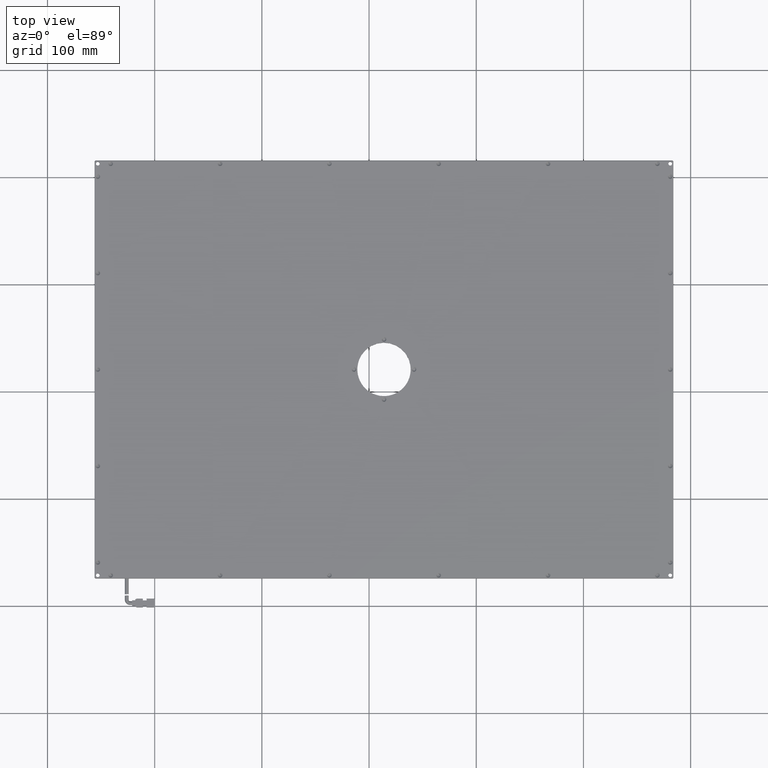
[diagram: clean part render]
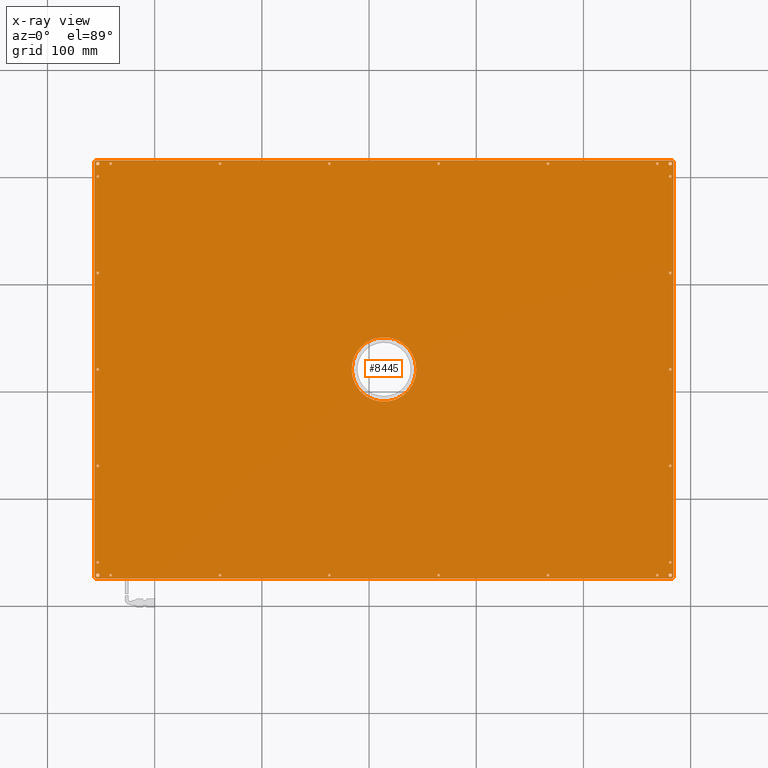
[diagram: x-ray — body ghosted, one internal face saturated and labeled with its STEP entity id]
A machine part, top view, then the same camera in x-ray: the body is ghosted and one INTERNAL B-rep face — a face not visible from any outside direction — is saturated and labeled: STEP entity #8445.
In plain terms, the highlighted planar face has unit normal (0, 0, -1).
Its self-contained STEP definition (entity closure, byte-faithful):
#55 = DIRECTION ( 'NONE',  ( -0.0000000000000000000, -0.0000000000000000000, 1.000000000000000000 ) ) ;
#72 = AXIS2_PLACEMENT_3D ( 'NONE', #33589, #7498, #23959 ) ;
#150 = LINE ( 'NONE', #10394, #11915 ) ;
#157 = CIRCLE ( 'NONE', #1136, 1.199999999999978900 ) ;
#177 = DIRECTION ( 'NONE',  ( 1.000000000000000000, 0.0000000000000000000, 0.0000000000000000000 ) ) ;
#397 = CARTESIAN_POINT ( 'NONE',  ( -253.0590440487347900, 110.7122774133084700, 10.00000000001909900 ) ) ;
#404 = CARTESIAN_POINT ( 'NONE',  ( 282.9409559512652100, 215.7122774133083900, 10.00000000001909800 ) ) ;
#492 = EDGE_CURVE ( 'NONE', #15479, #27927, #1912, .T. ) ;
#497 = CARTESIAN_POINT ( 'NONE',  ( 268.9409559512652100, 212.7122774133083900, 10.00000000001909900 ) ) ;
#609 = FACE_BOUND ( 'NONE', #9022, .T. ) ;
#699 = CARTESIAN_POINT ( 'NONE',  ( -256.0590440487347900, -173.2877225866916100, 10.00000000001909800 ) ) ;
#830 = CARTESIAN_POINT ( 'NONE',  ( -254.2590440487347800, -69.28772258669162900, 10.00000000001909900 ) ) ;
#967 = AXIS2_PLACEMENT_3D ( 'NONE', #32111, #42356, #15933 ) ;
#1136 = AXIS2_PLACEMENT_3D ( 'NONE', #34912, #25718, #2398 ) ;
#1145 = EDGE_LOOP ( 'NONE', ( #38197, #10732 ) ) ;
#1149 = CARTESIAN_POINT ( 'NONE',  ( 64.94095595126519500, -171.2877225866916100, 10.00000000001909900 ) ) ;
#1174 = CIRCLE ( 'NONE', #2687, 1.199999999999978900 ) ;
#1260 = EDGE_LOOP ( 'NONE', ( #14462, #20805 ) ) ;
#1285 = DIRECTION ( 'NONE',  ( -0.0000000000000000000, -0.0000000000000000000, 1.000000000000000000 ) ) ;
#1388 = VERTEX_POINT ( 'NONE', #5441 ) ;
#1472 = CARTESIAN_POINT ( 'NONE',  ( -251.8590440487348300, -69.28772258669162900, 10.00000000001909900 ) ) ;
#1520 = AXIS2_PLACEMENT_3D ( 'NONE', #31220, #24192, #31075 ) ;
#1599 = VECTOR ( 'NONE', #20843, 1000.000000000000100 ) ;
#1648 = AXIS2_PLACEMENT_3D ( 'NONE', #23380, #32993, #29556 ) ;
#1762 = VERTEX_POINT ( 'NONE', #37903 ) ;
#1781 = EDGE_CURVE ( 'NONE', #3684, #8140, #12857, .T. ) ;
#1912 = CIRCLE ( 'NONE', #26301, 1.199999999999978900 ) ;
#2056 = CARTESIAN_POINT ( 'NONE',  ( 63.74095595126522100, -171.2877225866916100, 10.00000000001909900 ) ) ;
#2079 = CARTESIAN_POINT ( 'NONE',  ( 280.9409559512652100, 20.71227741330838900, 10.00000000001909900 ) ) ;
#2160 = EDGE_CURVE ( 'NONE', #15859, #37869, #20997, .T. ) ;
#2197 = VECTOR ( 'NONE', #8197, 1000.000000000000100 ) ;
#2398 = DIRECTION ( 'NONE',  ( 1.000000000000000000, 0.0000000000000000000, 0.0000000000000000000 ) ) ;
#2496 = AXIS2_PLACEMENT_3D ( 'NONE', #25147, #41150, #34638 ) ;
#2497 = CARTESIAN_POINT ( 'NONE',  ( 280.9409559512652100, 212.7122774133083900, 10.00000000001909900 ) ) ;
#2506 = CIRCLE ( 'NONE', #32125, 1.749999999999973800 ) ;
#2565 = DIRECTION ( 'NONE',  ( -1.000000000000000000, 0.0000000000000000000, 0.0000000000000000000 ) ) ;
#2643 = FACE_BOUND ( 'NONE', #7225, .T. ) ;
#2652 = CARTESIAN_POINT ( 'NONE',  ( -37.05904404873480500, 212.7122774133083900, 10.00000000001909900 ) ) ;
#2687 = AXIS2_PLACEMENT_3D ( 'NONE', #37233, #17630, #40604 ) ;
#2748 = CARTESIAN_POINT ( 'NONE',  ( -251.3090440487348200, 212.7122774133083900, 10.00000000001909900 ) ) ;
#2819 = CARTESIAN_POINT ( 'NONE',  ( 283.9409559512652100, -173.2877225866915600, 10.00000000001909800 ) ) ;
#3011 = EDGE_CURVE ( 'NONE', #26882, #27317, #26645, .T. ) ;
#3054 = CARTESIAN_POINT ( 'NONE',  ( 267.7409559512652200, -171.2877225866916100, 10.00000000001909900 ) ) ;
#3089 = DIRECTION ( 'NONE',  ( -0.0000000000000000000, -0.0000000000000000000, 1.000000000000000000 ) ) ;
#3133 = FACE_BOUND ( 'NONE', #28036, .T. ) ;
#3143 = EDGE_LOOP ( 'NONE', ( #26117, #18301 ) ) ;
#3191 = CIRCLE ( 'NONE', #19431, 1.199999999999978900 ) ;
#3226 = CIRCLE ( 'NONE', #12267, 1.199999999999978900 ) ;
#3313 = DIRECTION ( 'NONE',  ( 1.000000000000000000, 0.0000000000000000000, 0.0000000000000000000 ) ) ;
#3398 = CIRCLE ( 'NONE', #28945, 1.199999999999978900 ) ;
#3410 = CARTESIAN_POINT ( 'NONE',  ( 279.7409559512652200, -69.28772258669162900, 10.00000000001909900 ) ) ;
#3479 = VERTEX_POINT ( 'NONE', #11644 ) ;
#3499 = EDGE_LOOP ( 'NONE', ( #38832, #10981 ) ) ;
#3520 = DIRECTION ( 'NONE',  ( -0.0000000000000000000, -0.0000000000000000000, 1.000000000000000000 ) ) ;
#3545 = EDGE_CURVE ( 'NONE', #26257, #21757, #15845, .T. ) ;
#3561 = DIRECTION ( 'NONE',  ( 1.000000000000000000, 0.0000000000000000000, 0.0000000000000000000 ) ) ;
#3619 = CARTESIAN_POINT ( 'NONE',  ( -139.0590440487348200, -171.2877225866916100, 10.00000000001909900 ) ) ;
#3649 = VERTEX_POINT ( 'NONE', #19655 ) ;
#3665 = DIRECTION ( 'NONE',  ( 1.000000000000000000, -0.0000000000000000000, 0.0000000000000000000 ) ) ;
#3666 = DIRECTION ( 'NONE',  ( 1.000000000000000000, 0.0000000000000000000, 0.0000000000000000000 ) ) ;
#3684 = VERTEX_POINT ( 'NONE', #9931 ) ;
#3762 = DIRECTION ( 'NONE',  ( -0.0000000000000000000, -0.0000000000000000000, 1.000000000000000000 ) ) ;
#3781 = EDGE_LOOP ( 'NONE', ( #16815, #6312 ) ) ;
#3864 = CIRCLE ( 'NONE', #13344, 1.199999999999978900 ) ;
#3976 = EDGE_CURVE ( 'NONE', #14496, #35120, #35753, .T. ) ;
#4067 = EDGE_CURVE ( 'NONE', #24275, #20075, #28038, .T. ) ;
#4163 = FACE_BOUND ( 'NONE', #25843, .T. ) ;
#4287 = DIRECTION ( 'NONE',  ( -0.0000000000000000000, -0.0000000000000000000, 1.000000000000000000 ) ) ;
#4294 = CARTESIAN_POINT ( 'NONE',  ( 282.9409559512652100, 215.7122774133083900, 10.00000000001909800 ) ) ;
#4538 = EDGE_CURVE ( 'NONE', #3479, #36343, #3864, .T. ) ;
#4687 = FACE_BOUND ( 'NONE', #3143, .T. ) ;
#4795 = DIRECTION ( 'NONE',  ( -0.0000000000000000000, -0.0000000000000000000, 1.000000000000000000 ) ) ;
#4799 = ORIENTED_EDGE ( 'NONE', *, *, #4067, .T. ) ;
#4825 = LINE ( 'NONE', #35461, #11006 ) ;
#5121 = CIRCLE ( 'NONE', #9244, 1.200000000000006600 ) ;
#5132 = EDGE_LOOP ( 'NONE', ( #24035, #14879, #36401, #31326, #30204, #24041, #5551, #27769 ) ) ;
#5196 = FACE_BOUND ( 'NONE', #25436, .T. ) ;
#5214 = CIRCLE ( 'NONE', #7220, 1.199999999999978900 ) ;
#5378 = EDGE_CURVE ( 'NONE', #35408, #12247, #1174, .T. ) ;
#5441 = CARTESIAN_POINT ( 'NONE',  ( 279.1909559512652100, 212.7122774133083900, 10.00000000001909900 ) ) ;
#5501 = VERTEX_POINT ( 'NONE', #8449 ) ;
#5551 = ORIENTED_EDGE ( 'NONE', *, *, #20972, .T. ) ;
#5579 = CIRCLE ( 'NONE', #39320, 30.10000000000001600 ) ;
#5816 = CARTESIAN_POINT ( 'NONE',  ( 63.74095595126522100, 212.7122774133083900, 10.00000000001909900 ) ) ;
#5824 = EDGE_CURVE ( 'NONE', #8993, #34668, #7198, .T. ) ;
#5909 = VERTEX_POINT ( 'NONE', #14221 ) ;
#5973 = DIRECTION ( 'NONE',  ( 1.000000000000000000, 0.0000000000000000000, 0.0000000000000000000 ) ) ;
#6004 = CARTESIAN_POINT ( 'NONE',  ( -254.2590440487347800, 20.71227741330838900, 10.00000000001909900 ) ) ;
#6066 = DIRECTION ( 'NONE',  ( 1.000000000000000000, 0.0000000000000000000, 0.0000000000000000000 ) ) ;
#6089 = CIRCLE ( 'NONE', #17266, 1.199999999999978900 ) ;
#6214 = CARTESIAN_POINT ( 'NONE',  ( -256.0590440487347900, 214.7122774133084400, 10.00000000001909800 ) ) ;
#6312 = ORIENTED_EDGE ( 'NONE', *, *, #5378, .T. ) ;
#6459 = CARTESIAN_POINT ( 'NONE',  ( -253.0590440487347900, 212.7122774133083900, 10.00000000001909900 ) ) ;
#6464 = CARTESIAN_POINT ( 'NONE',  ( -256.0590440487347900, -174.2877225866916100, 10.00000000001909900 ) ) ;
#6467 = PLANE ( 'NONE',  #19321 ) ;
#6518 = AXIS2_PLACEMENT_3D ( 'NONE', #2497, #15421, #18963 ) ;
#6714 = EDGE_CURVE ( 'NONE', #1762, #40919, #5579, .T. ) ;
#6824 = CARTESIAN_POINT ( 'NONE',  ( 270.1409559512652000, 212.7122774133083900, 10.00000000001909900 ) ) ;
#6864 = DIRECTION ( 'NONE',  ( -0.0000000000000000000, -0.0000000000000000000, 1.000000000000000000 ) ) ;
#6881 = CARTESIAN_POINT ( 'NONE',  ( 279.7409559512652200, 110.7122774133084700, 10.00000000001909900 ) ) ;
#7198 = LINE ( 'NONE', #7785, #1599 ) ;
#7220 = AXIS2_PLACEMENT_3D ( 'NONE', #11806, #37884, #11657 ) ;
#7225 = EDGE_LOOP ( 'NONE', ( #4799, #38680 ) ) ;
#7237 = EDGE_CURVE ( 'NONE', #40462, #27413, #7983, .T. ) ;
#7241 = FACE_BOUND ( 'NONE', #3781, .T. ) ;
#7294 = CARTESIAN_POINT ( 'NONE',  ( -255.0590440487349000, 215.7122774133083900, 10.00000000001909800 ) ) ;
#7364 = ORIENTED_EDGE ( 'NONE', *, *, #20919, .T. ) ;
#7415 = DIRECTION ( 'NONE',  ( 1.000000000000000000, 0.0000000000000000000, 0.0000000000000000000 ) ) ;
#7498 = DIRECTION ( 'NONE',  ( -0.0000000000000000000, -0.0000000000000000000, 1.000000000000000000 ) ) ;
#7542 = DIRECTION ( 'NONE',  ( 1.000000000000000000, 0.0000000000000000000, 0.0000000000000000000 ) ) ;
#7625 = AXIS2_PLACEMENT_3D ( 'NONE', #13604, #20210, #3313 ) ;
#7785 = CARTESIAN_POINT ( 'NONE',  ( -255.0590440487348200, -174.2877225866916100, 10.00000000001909800 ) ) ;
#7804 = DIRECTION ( 'NONE',  ( -0.0000000000000000000, -0.0000000000000000000, 1.000000000000000000 ) ) ;
#7820 = VERTEX_POINT ( 'NONE', #38159 ) ;
#7874 = CARTESIAN_POINT ( 'NONE',  ( -242.2590440487347800, 212.7122774133083900, 10.00000000001909900 ) ) ;
#7920 = VERTEX_POINT ( 'NONE', #6214 ) ;
#7983 = CIRCLE ( 'NONE', #2496, 1.199999999999978900 ) ;
#8059 = CIRCLE ( 'NONE', #40568, 1.199999999999978900 ) ;
#8061 = DIRECTION ( 'NONE',  ( -0.0000000000000000000, -0.0000000000000000000, 1.000000000000000000 ) ) ;
#8140 = VERTEX_POINT ( 'NONE', #41792 ) ;
#8197 = DIRECTION ( 'NONE',  ( 0.7071067811865474600, 0.7071067811865474600, 0.0000000000000000000 ) ) ;
#8272 = CARTESIAN_POINT ( 'NONE',  ( -256.0590440487347900, 215.7122774133083900, 10.00000000001909900 ) ) ;
#8445 = ADVANCED_FACE ( 'NONE', ( #18530, #9321, #19050, #21595, #10339, #609, #2643, #28787, #18029, #20571, #21093, #35954, #7241, #42195, #3133, #14955, #34434, #13396, #25690, #4687, #39070, #33389, #22615, #5196, #4163, #9817, #32363, #16992 ), #6467, .T. ) ;
#8449 = CARTESIAN_POINT ( 'NONE',  ( -140.2590440487347800, 212.7122774133083900, 10.00000000001909900 ) ) ;
#8450 = CARTESIAN_POINT ( 'NONE',  ( -253.0590440487347900, -69.28772258669162900, 10.00000000001909900 ) ) ;
#8474 = VERTEX_POINT ( 'NONE', #16761 ) ;
#8543 = EDGE_CURVE ( 'NONE', #19080, #15606, #15720, .T. ) ;
#8559 = EDGE_LOOP ( 'NONE', ( #21621, #9743 ) ) ;
#8616 = CIRCLE ( 'NONE', #72, 1.199999999999978900 ) ;
#8758 = CARTESIAN_POINT ( 'NONE',  ( -137.8590440487348300, 212.7122774133083900, 10.00000000001909900 ) ) ;
#8827 = LINE ( 'NONE', #6464, #36563 ) ;
#8876 = EDGE_LOOP ( 'NONE', ( #22649, #11547 ) ) ;
#8993 = VERTEX_POINT ( 'NONE', #38818 ) ;
#9022 = EDGE_LOOP ( 'NONE', ( #27090, #17936 ) ) ;
#9197 = CARTESIAN_POINT ( 'NONE',  ( -253.0590440487347900, -159.2877225866916100, 10.00000000001909900 ) ) ;
#9244 = AXIS2_PLACEMENT_3D ( 'NONE', #22962, #3762, #16263 ) ;
#9275 = DIRECTION ( 'NONE',  ( -0.0000000000000000000, -0.0000000000000000000, 1.000000000000000000 ) ) ;
#9321 = FACE_BOUND ( 'NONE', #8559, .T. ) ;
#9366 = CARTESIAN_POINT ( 'NONE',  ( 282.1409559512652000, 200.7122774133083900, 10.00000000001909900 ) ) ;
#9597 = CARTESIAN_POINT ( 'NONE',  ( 280.9409559512652100, -69.28772258669162900, 10.00000000001909900 ) ) ;
#9608 = DIRECTION ( 'NONE',  ( -0.0000000000000000000, -0.0000000000000000000, 1.000000000000000000 ) ) ;
#9635 = EDGE_LOOP ( 'NONE', ( #29445, #24055 ) ) ;
#9677 = EDGE_LOOP ( 'NONE', ( #30073, #18723 ) ) ;
#9693 = DIRECTION ( 'NONE',  ( 1.000000000000000000, 0.0000000000000000000, 0.0000000000000000000 ) ) ;
#9743 = ORIENTED_EDGE ( 'NONE', *, *, #492, .T. ) ;
#9776 = AXIS2_PLACEMENT_3D ( 'NONE', #40394, #13814, #14236 ) ;
#9792 = CIRCLE ( 'NONE', #35944, 1.199999999999978900 ) ;
#9817 = FACE_BOUND ( 'NONE', #15442, .T. ) ;
#9830 = EDGE_LOOP ( 'NONE', ( #11069, #11056 ) ) ;
#9931 = CARTESIAN_POINT ( 'NONE',  ( -251.8590440487348300, 200.7122774133083900, 10.00000000001909900 ) ) ;
#9990 = CARTESIAN_POINT ( 'NONE',  ( -137.8590440487348300, -171.2877225866916100, 10.00000000001909900 ) ) ;
#10005 = AXIS2_PLACEMENT_3D ( 'NONE', #16539, #33143, #39497 ) ;
#10045 = CARTESIAN_POINT ( 'NONE',  ( -256.0590440487347900, 215.7122774133083900, 10.00000000001909900 ) ) ;
#10210 = DIRECTION ( 'NONE',  ( 1.000000000000000000, 0.0000000000000000000, 0.0000000000000000000 ) ) ;
#10213 = AXIS2_PLACEMENT_3D ( 'NONE', #1149, #4287, #39866 ) ;
#10300 = DIRECTION ( 'NONE',  ( 1.000000000000000000, 0.0000000000000000000, 0.0000000000000000000 ) ) ;
#10339 = FACE_BOUND ( 'NONE', #35431, .T. ) ;
#10343 = CARTESIAN_POINT ( 'NONE',  ( -254.8090440487347900, 212.7122774133083900, 10.00000000001909900 ) ) ;
#10394 = CARTESIAN_POINT ( 'NONE',  ( -256.0590440487347900, 215.7122774133083900, 10.00000000001909900 ) ) ;
#10547 = CARTESIAN_POINT ( 'NONE',  ( 168.1409559512651700, 212.7122774133083900, 10.00000000001909900 ) ) ;
#10584 = DIRECTION ( 'NONE',  ( 1.000000000000000000, 0.0000000000000000000, 0.0000000000000000000 ) ) ;
#10607 = AXIS2_PLACEMENT_3D ( 'NONE', #397, #3089, #9693 ) ;
#10609 = CARTESIAN_POINT ( 'NONE',  ( 279.7409559512652200, 20.71227741330838900, 10.00000000001909900 ) ) ;
#10613 = AXIS2_PLACEMENT_3D ( 'NONE', #29231, #6864, #177 ) ;
#10626 = DIRECTION ( 'NONE',  ( 1.000000000000000000, 0.0000000000000000000, 0.0000000000000000000 ) ) ;
#10684 = VERTEX_POINT ( 'NONE', #6824 ) ;
#10732 = ORIENTED_EDGE ( 'NONE', *, *, #35840, .T. ) ;
#10818 = EDGE_CURVE ( 'NONE', #16291, #8474, #31293, .T. ) ;
#10898 = CARTESIAN_POINT ( 'NONE',  ( 165.7409559512651900, -171.2877225866916100, 10.00000000001909900 ) ) ;
#10981 = ORIENTED_EDGE ( 'NONE', *, *, #21557, .T. ) ;
#11006 = VECTOR ( 'NONE', #15584, 1000.000000000000000 ) ;
#11056 = ORIENTED_EDGE ( 'NONE', *, *, #36455, .T. ) ;
#11059 = ORIENTED_EDGE ( 'NONE', *, *, #29581, .T. ) ;
#11069 = ORIENTED_EDGE ( 'NONE', *, *, #7237, .T. ) ;
#11110 = EDGE_CURVE ( 'NONE', #37869, #15859, #32775, .T. ) ;
#11132 = EDGE_LOOP ( 'NONE', ( #30522, #33138 ) ) ;
#11214 = ORIENTED_EDGE ( 'NONE', *, *, #14664, .T. ) ;
#11547 = ORIENTED_EDGE ( 'NONE', *, *, #16307, .T. ) ;
#11644 = CARTESIAN_POINT ( 'NONE',  ( 279.7409559512652200, -159.2877225866916100, 10.00000000001909900 ) ) ;
#11657 = DIRECTION ( 'NONE',  ( 1.000000000000000000, 0.0000000000000000000, 0.0000000000000000000 ) ) ;
#11666 = DIRECTION ( 'NONE',  ( 1.000000000000000000, 0.0000000000000000000, 0.0000000000000000000 ) ) ;
#11803 = VERTEX_POINT ( 'NONE', #10547 ) ;
#11806 = CARTESIAN_POINT ( 'NONE',  ( 280.9409559512652100, 20.71227741330838900, 10.00000000001909900 ) ) ;
#11915 = VECTOR ( 'NONE', #3665, 1000.000000000000000 ) ;
#11953 = EDGE_CURVE ( 'NONE', #40653, #19103, #2506, .T. ) ;
#11974 = ORIENTED_EDGE ( 'NONE', *, *, #22659, .T. ) ;
#12161 = ORIENTED_EDGE ( 'NONE', *, *, #25157, .T. ) ;
#12247 = VERTEX_POINT ( 'NONE', #38774 ) ;
#12267 = AXIS2_PLACEMENT_3D ( 'NONE', #42072, #25210, #12325 ) ;
#12325 = DIRECTION ( 'NONE',  ( 1.000000000000000000, 0.0000000000000000000, 0.0000000000000000000 ) ) ;
#12432 = CIRCLE ( 'NONE', #1648, 1.749999999999973800 ) ;
#12458 = CARTESIAN_POINT ( 'NONE',  ( 13.94095595126520900, 20.71227741330838900, 10.00000000001909900 ) ) ;
#12469 = AXIS2_PLACEMENT_3D ( 'NONE', #20748, #1285, #10584 ) ;
#12542 = CARTESIAN_POINT ( 'NONE',  ( 268.9409559512652100, -171.2877225866916100, 10.00000000001909900 ) ) ;
#12579 = EDGE_LOOP ( 'NONE', ( #26073, #42092 ) ) ;
#12594 = DIRECTION ( 'NONE',  ( -0.7071067811865474600, -0.7071067811865474600, 0.0000000000000000000 ) ) ;
#12614 = CARTESIAN_POINT ( 'NONE',  ( 279.1909559512652100, -171.2877225866916100, 10.00000000001909900 ) ) ;
#12857 = CIRCLE ( 'NONE', #36573, 1.199999999999978900 ) ;
#12987 = EDGE_CURVE ( 'NONE', #27927, #15479, #32611, .T. ) ;
#13016 = DIRECTION ( 'NONE',  ( -0.0000000000000000000, -0.0000000000000000000, 1.000000000000000000 ) ) ;
#13023 = DIRECTION ( 'NONE',  ( -1.000000000000000000, 0.0000000000000000000, -0.0000000000000000000 ) ) ;
#13082 = CARTESIAN_POINT ( 'NONE',  ( 282.1409559512652000, -69.28772258669162900, 10.00000000001909900 ) ) ;
#13084 = CIRCLE ( 'NONE', #6518, 1.750000000000029300 ) ;
#13113 = CARTESIAN_POINT ( 'NONE',  ( -253.0590440487347900, 20.71227741330838900, 10.00000000001909900 ) ) ;
#13244 = CARTESIAN_POINT ( 'NONE',  ( 282.1409559512652000, -159.2877225866916100, 10.00000000001909900 ) ) ;
#13277 = ORIENTED_EDGE ( 'NONE', *, *, #16333, .T. ) ;
#13344 = AXIS2_PLACEMENT_3D ( 'NONE', #16012, #38939, #32737 ) ;
#13378 = VERTEX_POINT ( 'NONE', #6004 ) ;
#13396 = FACE_BOUND ( 'NONE', #9677, .T. ) ;
#13403 = AXIS2_PLACEMENT_3D ( 'NONE', #41536, #21815, #21954 ) ;
#13529 = EDGE_CURVE ( 'NONE', #15606, #19080, #24280, .T. ) ;
#13565 = CIRCLE ( 'NONE', #38755, 1.749999999999973800 ) ;
#13597 = VERTEX_POINT ( 'NONE', #2819 ) ;
#13604 = CARTESIAN_POINT ( 'NONE',  ( 268.9409559512652100, 212.7122774133083900, 10.00000000001909900 ) ) ;
#13750 = EDGE_CURVE ( 'NONE', #7920, #19403, #19615, .T. ) ;
#13763 = DIRECTION ( 'NONE',  ( -0.0000000000000000000, -0.0000000000000000000, 1.000000000000000000 ) ) ;
#13770 = VERTEX_POINT ( 'NONE', #41236 ) ;
#13783 = AXIS2_PLACEMENT_3D ( 'NONE', #17189, #27032, #21835 ) ;
#13814 = DIRECTION ( 'NONE',  ( 0.0000000000000000000, 0.0000000000000000000, 1.000000000000000000 ) ) ;
#14034 = CARTESIAN_POINT ( 'NONE',  ( 166.9409559512651800, -171.2877225866916100, 10.00000000001909900 ) ) ;
#14110 = DIRECTION ( 'NONE',  ( 1.000000000000000000, 0.0000000000000000000, 0.0000000000000000000 ) ) ;
#14186 = DIRECTION ( 'NONE',  ( -0.0000000000000000000, -0.0000000000000000000, 1.000000000000000000 ) ) ;
#14200 = AXIS2_PLACEMENT_3D ( 'NONE', #12542, #37671, #22135 ) ;
#14221 = CARTESIAN_POINT ( 'NONE',  ( -242.2590440487347800, -171.2877225866916100, 10.00000000001909900 ) ) ;
#14236 = DIRECTION ( 'NONE',  ( -1.000000000000000000, 0.0000000000000000000, 0.0000000000000000000 ) ) ;
#14274 = DIRECTION ( 'NONE',  ( -0.0000000000000000000, -0.0000000000000000000, 1.000000000000000000 ) ) ;
#14315 = EDGE_CURVE ( 'NONE', #13597, #18558, #33797, .T. ) ;
#14366 = EDGE_LOOP ( 'NONE', ( #11214, #34054 ) ) ;
#14436 = CIRCLE ( 'NONE', #40976, 1.199999999999978900 ) ;
#14462 = ORIENTED_EDGE ( 'NONE', *, *, #20320, .T. ) ;
#14496 = VERTEX_POINT ( 'NONE', #3410 ) ;
#14644 = CARTESIAN_POINT ( 'NONE',  ( -254.2590440487347800, 110.7122774133084700, 10.00000000001909900 ) ) ;
#14664 = EDGE_CURVE ( 'NONE', #8474, #16291, #33804, .T. ) ;
#14671 = CARTESIAN_POINT ( 'NONE',  ( 166.9409559512651800, 212.7122774133083900, 10.00000000001909900 ) ) ;
#14819 = DIRECTION ( 'NONE',  ( 1.000000000000000000, 0.0000000000000000000, 0.0000000000000000000 ) ) ;
#14823 = ORIENTED_EDGE ( 'NONE', *, *, #29462, .T. ) ;
#14879 = ORIENTED_EDGE ( 'NONE', *, *, #13750, .T. ) ;
#14955 = FACE_BOUND ( 'NONE', #11132, .T. ) ;
#15064 = AXIS2_PLACEMENT_3D ( 'NONE', #9197, #22773, #39013 ) ;
#15075 = ORIENTED_EDGE ( 'NONE', *, *, #15753, .T. ) ;
#15319 = ORIENTED_EDGE ( 'NONE', *, *, #6714, .T. ) ;
#15332 = EDGE_CURVE ( 'NONE', #11803, #34323, #8059, .T. ) ;
#15421 = DIRECTION ( 'NONE',  ( -0.0000000000000000000, -0.0000000000000000000, 1.000000000000000000 ) ) ;
#15442 = EDGE_LOOP ( 'NONE', ( #37190, #13277 ) ) ;
#15479 = VERTEX_POINT ( 'NONE', #2056 ) ;
#15584 = DIRECTION ( 'NONE',  ( -0.0000000000000000000, -1.000000000000000000, -0.0000000000000000000 ) ) ;
#15606 = VERTEX_POINT ( 'NONE', #9366 ) ;
#15640 = VERTEX_POINT ( 'NONE', #2748 ) ;
#15704 = ORIENTED_EDGE ( 'NONE', *, *, #26264, .T. ) ;
#15720 = CIRCLE ( 'NONE', #12469, 1.199999999999978900 ) ;
#15753 = EDGE_CURVE ( 'NONE', #10684, #16656, #27415, .T. ) ;
#15789 = CARTESIAN_POINT ( 'NONE',  ( -239.8590440487348000, -171.2877225866916100, 10.00000000001909900 ) ) ;
#15845 = CIRCLE ( 'NONE', #42498, 1.750000000000029300 ) ;
#15859 = VERTEX_POINT ( 'NONE', #24189 ) ;
#15917 = ORIENTED_EDGE ( 'NONE', *, *, #22305, .T. ) ;
#15929 = CARTESIAN_POINT ( 'NONE',  ( -241.0590440487347900, -171.2877225866916100, 10.00000000001909900 ) ) ;
#15933 = DIRECTION ( 'NONE',  ( 1.000000000000000000, 0.0000000000000000000, 0.0000000000000000000 ) ) ;
#15960 = DIRECTION ( 'NONE',  ( 1.000000000000000000, 0.0000000000000000000, 0.0000000000000000000 ) ) ;
#16012 = CARTESIAN_POINT ( 'NONE',  ( 280.9409559512652100, -159.2877225866916100, 10.00000000001909900 ) ) ;
#16072 = DIRECTION ( 'NONE',  ( 1.000000000000000000, 0.0000000000000000000, 0.0000000000000000000 ) ) ;
#16263 = DIRECTION ( 'NONE',  ( 1.000000000000000000, 0.0000000000000000000, 0.0000000000000000000 ) ) ;
#16291 = VERTEX_POINT ( 'NONE', #3054 ) ;
#16307 = EDGE_CURVE ( 'NONE', #34323, #11803, #40146, .T. ) ;
#16315 = CARTESIAN_POINT ( 'NONE',  ( 64.94095595126519500, -171.2877225866916100, 10.00000000001909900 ) ) ;
#16323 = DIRECTION ( 'NONE',  ( -0.0000000000000000000, -0.0000000000000000000, 1.000000000000000000 ) ) ;
#16333 = EDGE_CURVE ( 'NONE', #23541, #15640, #12432, .T. ) ;
#16357 = VERTEX_POINT ( 'NONE', #26524 ) ;
#16506 = EDGE_CURVE ( 'NONE', #7820, #29071, #14436, .T. ) ;
#16539 = CARTESIAN_POINT ( 'NONE',  ( -253.0590440487347900, 20.71227741330838900, 10.00000000001909900 ) ) ;
#16656 = VERTEX_POINT ( 'NONE', #40620 ) ;
#16665 = DIRECTION ( 'NONE',  ( 1.000000000000000000, 0.0000000000000000000, 0.0000000000000000000 ) ) ;
#16673 = DIRECTION ( 'NONE',  ( 1.000000000000000000, 0.0000000000000000000, 0.0000000000000000000 ) ) ;
#16761 = CARTESIAN_POINT ( 'NONE',  ( 270.1409559512652000, -171.2877225866916100, 10.00000000001909900 ) ) ;
#16815 = ORIENTED_EDGE ( 'NONE', *, *, #17035, .T. ) ;
#16992 = FACE_BOUND ( 'NONE', #18056, .T. ) ;
#17035 = EDGE_CURVE ( 'NONE', #12247, #35408, #26124, .T. ) ;
#17189 = CARTESIAN_POINT ( 'NONE',  ( -253.0590440487347900, 200.7122774133083900, 10.00000000001909900 ) ) ;
#17224 = CIRCLE ( 'NONE', #34544, 1.199999999999978900 ) ;
#17266 = AXIS2_PLACEMENT_3D ( 'NONE', #24158, #14274, #7415 ) ;
#17299 = VERTEX_POINT ( 'NONE', #37492 ) ;
#17313 = CARTESIAN_POINT ( 'NONE',  ( -253.0590440487347900, -171.2877225866916100, 10.00000000001909900 ) ) ;
#17334 = EDGE_CURVE ( 'NONE', #36343, #3479, #157, .T. ) ;
#17630 = DIRECTION ( 'NONE',  ( -0.0000000000000000000, -0.0000000000000000000, 1.000000000000000000 ) ) ;
#17810 = EDGE_LOOP ( 'NONE', ( #15075, #26902 ) ) ;
#17936 = ORIENTED_EDGE ( 'NONE', *, *, #8543, .T. ) ;
#18029 = FACE_BOUND ( 'NONE', #39229, .T. ) ;
#18056 = EDGE_LOOP ( 'NONE', ( #15319, #29828 ) ) ;
#18301 = ORIENTED_EDGE ( 'NONE', *, *, #3976, .T. ) ;
#18422 = EDGE_LOOP ( 'NONE', ( #40566, #25848 ) ) ;
#18503 = VERTEX_POINT ( 'NONE', #28942 ) ;
#18530 = FACE_BOUND ( 'NONE', #14366, .T. ) ;
#18533 = EDGE_CURVE ( 'NONE', #35120, #14496, #36777, .T. ) ;
#18558 = VERTEX_POINT ( 'NONE', #35649 ) ;
#18707 = CIRCLE ( 'NONE', #967, 1.199999999999978900 ) ;
#18723 = ORIENTED_EDGE ( 'NONE', *, *, #11110, .T. ) ;
#18760 = CARTESIAN_POINT ( 'NONE',  ( 165.7409559512651900, 212.7122774133083900, 10.00000000001909900 ) ) ;
#18963 = DIRECTION ( 'NONE',  ( 1.000000000000000000, 0.0000000000000000000, 0.0000000000000000000 ) ) ;
#19050 = FACE_BOUND ( 'NONE', #3499, .T. ) ;
#19080 = VERTEX_POINT ( 'NONE', #22225 ) ;
#19103 = VERTEX_POINT ( 'NONE', #38736 ) ;
#19299 = AXIS2_PLACEMENT_3D ( 'NONE', #40205, #19626, #23590 ) ;
#19321 = AXIS2_PLACEMENT_3D ( 'NONE', #10045, #32942, #13023 ) ;
#19357 = CARTESIAN_POINT ( 'NONE',  ( 44.04095595126522500, 20.71227741330839200, 10.00000000001909900 ) ) ;
#19403 = VERTEX_POINT ( 'NONE', #7294 ) ;
#19431 = AXIS2_PLACEMENT_3D ( 'NONE', #15929, #38859, #38280 ) ;
#19464 = AXIS2_PLACEMENT_3D ( 'NONE', #36118, #13016, #29226 ) ;
#19615 = LINE ( 'NONE', #38008, #2197 ) ;
#19626 = DIRECTION ( 'NONE',  ( -0.0000000000000000000, -0.0000000000000000000, 1.000000000000000000 ) ) ;
#19655 = CARTESIAN_POINT ( 'NONE',  ( 282.1409559512652000, 20.71227741330838900, 10.00000000001909900 ) ) ;
#19905 = DIRECTION ( 'NONE',  ( -1.000000000000000000, 0.0000000000000000000, -0.0000000000000000000 ) ) ;
#19953 = CARTESIAN_POINT ( 'NONE',  ( -254.2590440487347800, -159.2877225866916100, 10.00000000001909900 ) ) ;
#19962 = EDGE_CURVE ( 'NONE', #40919, #1762, #22380, .T. ) ;
#20075 = VERTEX_POINT ( 'NONE', #830 ) ;
#20210 = DIRECTION ( 'NONE',  ( -0.0000000000000000000, -0.0000000000000000000, 1.000000000000000000 ) ) ;
#20320 = EDGE_CURVE ( 'NONE', #23711, #1388, #13084, .T. ) ;
#20492 = CIRCLE ( 'NONE', #30211, 1.750000000000029300 ) ;
#20513 = CARTESIAN_POINT ( 'NONE',  ( 282.6909559512652700, -171.2877225866916100, 10.00000000001909900 ) ) ;
#20571 = FACE_BOUND ( 'NONE', #17810, .T. ) ;
#20731 = AXIS2_PLACEMENT_3D ( 'NONE', #39093, #9275, #25717 ) ;
#20748 = CARTESIAN_POINT ( 'NONE',  ( 280.9409559512652100, 200.7122774133083900, 10.00000000001909900 ) ) ;
#20805 = ORIENTED_EDGE ( 'NONE', *, *, #27175, .T. ) ;
#20843 = DIRECTION ( 'NONE',  ( -0.7071067811865474600, 0.7071067811865474600, 0.0000000000000000000 ) ) ;
#20896 = EDGE_CURVE ( 'NONE', #29071, #7820, #3226, .T. ) ;
#20919 = EDGE_CURVE ( 'NONE', #24514, #5909, #3191, .T. ) ;
#20972 = EDGE_CURVE ( 'NONE', #18558, #8993, #8827, .T. ) ;
#20984 = EDGE_LOOP ( 'NONE', ( #7364, #38796 ) ) ;
#20997 = CIRCLE ( 'NONE', #19299, 1.199999999999978900 ) ;
#21093 = FACE_BOUND ( 'NONE', #8876, .T. ) ;
#21123 = DIRECTION ( 'NONE',  ( 1.000000000000000000, 0.0000000000000000000, 0.0000000000000000000 ) ) ;
#21557 = EDGE_CURVE ( 'NONE', #16357, #28309, #9792, .T. ) ;
#21595 = FACE_BOUND ( 'NONE', #30360, .T. ) ;
#21621 = ORIENTED_EDGE ( 'NONE', *, *, #12987, .T. ) ;
#21757 = VERTEX_POINT ( 'NONE', #20513 ) ;
#21815 = DIRECTION ( 'NONE',  ( -0.0000000000000000000, -0.0000000000000000000, 1.000000000000000000 ) ) ;
#21835 = DIRECTION ( 'NONE',  ( 1.000000000000000000, 0.0000000000000000000, 0.0000000000000000000 ) ) ;
#21851 = EDGE_LOOP ( 'NONE', ( #12161, #15704 ) ) ;
#21954 = DIRECTION ( 'NONE',  ( 1.000000000000000000, 0.0000000000000000000, 0.0000000000000000000 ) ) ;
#22135 = DIRECTION ( 'NONE',  ( 1.000000000000000000, 0.0000000000000000000, 0.0000000000000000000 ) ) ;
#22225 = CARTESIAN_POINT ( 'NONE',  ( 279.7409559512652200, 200.7122774133083900, 10.00000000001909900 ) ) ;
#22229 = CIRCLE ( 'NONE', #33895, 1.199999999999978900 ) ;
#22262 = CARTESIAN_POINT ( 'NONE',  ( -251.8590440487348300, 110.7122774133084700, 10.00000000001909900 ) ) ;
#22263 = DIRECTION ( 'NONE',  ( -0.0000000000000000000, -0.0000000000000000000, 1.000000000000000000 ) ) ;
#22305 = EDGE_CURVE ( 'NONE', #19103, #40653, #38365, .T. ) ;
#22380 = CIRCLE ( 'NONE', #9776, 30.10000000000001600 ) ;
#22615 = FACE_BOUND ( 'NONE', #9635, .T. ) ;
#22649 = ORIENTED_EDGE ( 'NONE', *, *, #15332, .T. ) ;
#22659 = EDGE_CURVE ( 'NONE', #21757, #26257, #20492, .T. ) ;
#22725 = AXIS2_PLACEMENT_3D ( 'NONE', #33834, #26927, #40329 ) ;
#22773 = DIRECTION ( 'NONE',  ( -0.0000000000000000000, -0.0000000000000000000, 1.000000000000000000 ) ) ;
#22962 = CARTESIAN_POINT ( 'NONE',  ( -37.05904404873480500, 212.7122774133083900, 10.00000000001909900 ) ) ;
#22965 = LINE ( 'NONE', #404, #24511 ) ;
#22972 = EDGE_CURVE ( 'NONE', #5909, #24514, #8616, .T. ) ;
#23047 = CARTESIAN_POINT ( 'NONE',  ( -241.0590440487347900, 212.7122774133083900, 10.00000000001909900 ) ) ;
#23380 = CARTESIAN_POINT ( 'NONE',  ( -253.0590440487347900, 212.7122774133083900, 10.00000000001909900 ) ) ;
#23536 = CIRCLE ( 'NONE', #13783, 1.199999999999978900 ) ;
#23541 = VERTEX_POINT ( 'NONE', #10343 ) ;
#23590 = DIRECTION ( 'NONE',  ( 1.000000000000000000, 0.0000000000000000000, 0.0000000000000000000 ) ) ;
#23711 = VERTEX_POINT ( 'NONE', #37827 ) ;
#23862 = VERTEX_POINT ( 'NONE', #35970 ) ;
#23959 = DIRECTION ( 'NONE',  ( 1.000000000000000000, 0.0000000000000000000, 0.0000000000000000000 ) ) ;
#24035 = ORIENTED_EDGE ( 'NONE', *, *, #40302, .T. ) ;
#24041 = ORIENTED_EDGE ( 'NONE', *, *, #14315, .T. ) ;
#24055 = ORIENTED_EDGE ( 'NONE', *, *, #20896, .T. ) ;
#24078 = AXIS2_PLACEMENT_3D ( 'NONE', #27645, #37541, #31085 ) ;
#24109 = DIRECTION ( 'NONE',  ( -0.0000000000000000000, -0.0000000000000000000, 1.000000000000000000 ) ) ;
#24158 = CARTESIAN_POINT ( 'NONE',  ( -253.0590440487347900, -69.28772258669162900, 10.00000000001909900 ) ) ;
#24189 = CARTESIAN_POINT ( 'NONE',  ( -251.8590440487348300, -159.2877225866916100, 10.00000000001909900 ) ) ;
#24192 = DIRECTION ( 'NONE',  ( -0.0000000000000000000, -0.0000000000000000000, 1.000000000000000000 ) ) ;
#24275 = VERTEX_POINT ( 'NONE', #1472 ) ;
#24280 = CIRCLE ( 'NONE', #28351, 1.199999999999978900 ) ;
#24415 = CARTESIAN_POINT ( 'NONE',  ( -253.0590440487347900, 200.7122774133083900, 10.00000000001909900 ) ) ;
#24511 = VECTOR ( 'NONE', #36214, 1000.000000000000000 ) ;
#24514 = VERTEX_POINT ( 'NONE', #15789 ) ;
#24517 = VERTEX_POINT ( 'NONE', #35655 ) ;
#24589 = VECTOR ( 'NONE', #27906, 1000.000000000000000 ) ;
#25072 = VECTOR ( 'NONE', #12594, 1000.000000000000100 ) ;
#25147 = CARTESIAN_POINT ( 'NONE',  ( -253.0590440487347900, 110.7122774133084700, 10.00000000001909900 ) ) ;
#25157 = EDGE_CURVE ( 'NONE', #17299, #24517, #31322, .T. ) ;
#25210 = DIRECTION ( 'NONE',  ( -0.0000000000000000000, -0.0000000000000000000, 1.000000000000000000 ) ) ;
#25436 = EDGE_LOOP ( 'NONE', ( #29960, #15917 ) ) ;
#25602 = DIRECTION ( 'NONE',  ( -0.0000000000000000000, -0.0000000000000000000, 1.000000000000000000 ) ) ;
#25690 = FACE_BOUND ( 'NONE', #12579, .T. ) ;
#25717 = DIRECTION ( 'NONE',  ( 1.000000000000000000, 0.0000000000000000000, 0.0000000000000000000 ) ) ;
#25718 = DIRECTION ( 'NONE',  ( -0.0000000000000000000, -0.0000000000000000000, 1.000000000000000000 ) ) ;
#25757 = CARTESIAN_POINT ( 'NONE',  ( 283.9409559512652100, -173.2877225866916100, 10.00000000001909800 ) ) ;
#25843 = EDGE_LOOP ( 'NONE', ( #11974, #26160 ) ) ;
#25848 = ORIENTED_EDGE ( 'NONE', *, *, #28302, .T. ) ;
#26073 = ORIENTED_EDGE ( 'NONE', *, *, #31596, .T. ) ;
#26117 = ORIENTED_EDGE ( 'NONE', *, *, #18533, .T. ) ;
#26124 = CIRCLE ( 'NONE', #27451, 1.199999999999978900 ) ;
#26134 = DIRECTION ( 'NONE',  ( -0.0000000000000000000, -0.0000000000000000000, 1.000000000000000000 ) ) ;
#26160 = ORIENTED_EDGE ( 'NONE', *, *, #3545, .T. ) ;
#26200 = AXIS2_PLACEMENT_3D ( 'NONE', #8450, #7804, #14110 ) ;
#26257 = VERTEX_POINT ( 'NONE', #12614 ) ;
#26264 = EDGE_CURVE ( 'NONE', #24517, #17299, #36335, .T. ) ;
#26301 = AXIS2_PLACEMENT_3D ( 'NONE', #16315, #25602, #29489 ) ;
#26524 = CARTESIAN_POINT ( 'NONE',  ( -140.2590440487347800, -171.2877225866916100, 10.00000000001909900 ) ) ;
#26645 = CIRCLE ( 'NONE', #34711, 1.200000000000006600 ) ;
#26882 = VERTEX_POINT ( 'NONE', #32478 ) ;
#26902 = ORIENTED_EDGE ( 'NONE', *, *, #30171, .T. ) ;
#26927 = DIRECTION ( 'NONE',  ( -0.0000000000000000000, -0.0000000000000000000, 1.000000000000000000 ) ) ;
#26936 = CARTESIAN_POINT ( 'NONE',  ( -38.25904404873481500, 212.7122774133083900, 10.00000000001909900 ) ) ;
#27032 = DIRECTION ( 'NONE',  ( -0.0000000000000000000, -0.0000000000000000000, 1.000000000000000000 ) ) ;
#27090 = ORIENTED_EDGE ( 'NONE', *, *, #13529, .T. ) ;
#27172 = ORIENTED_EDGE ( 'NONE', *, *, #3011, .T. ) ;
#27175 = EDGE_CURVE ( 'NONE', #1388, #23711, #27928, .T. ) ;
#27317 = VERTEX_POINT ( 'NONE', #26936 ) ;
#27413 = VERTEX_POINT ( 'NONE', #14644 ) ;
#27415 = CIRCLE ( 'NONE', #7625, 1.199999999999978900 ) ;
#27430 = CARTESIAN_POINT ( 'NONE',  ( -251.8590440487348300, 20.71227741330838900, 10.00000000001909900 ) ) ;
#27451 = AXIS2_PLACEMENT_3D ( 'NONE', #23047, #36391, #10300 ) ;
#27595 = CARTESIAN_POINT ( 'NONE',  ( 66.14095595126518400, -171.2877225866916100, 10.00000000001909900 ) ) ;
#27617 = EDGE_CURVE ( 'NONE', #40768, #5501, #40187, .T. ) ;
#27645 = CARTESIAN_POINT ( 'NONE',  ( 64.94095595126519500, 212.7122774133083900, 10.00000000001909900 ) ) ;
#27729 = DIRECTION ( 'NONE',  ( -0.0000000000000000000, -0.0000000000000000000, 1.000000000000000000 ) ) ;
#27769 = ORIENTED_EDGE ( 'NONE', *, *, #5824, .T. ) ;
#27906 = DIRECTION ( 'NONE',  ( 0.0000000000000000000, 1.000000000000000000, 0.0000000000000000000 ) ) ;
#27927 = VERTEX_POINT ( 'NONE', #27595 ) ;
#27928 = CIRCLE ( 'NONE', #37262, 1.750000000000029300 ) ;
#28036 = EDGE_LOOP ( 'NONE', ( #27172, #37898 ) ) ;
#28038 = CIRCLE ( 'NONE', #26200, 1.199999999999978900 ) ;
#28112 = CARTESIAN_POINT ( 'NONE',  ( -251.3090440487348200, -171.2877225866916100, 10.00000000001909900 ) ) ;
#28302 = EDGE_CURVE ( 'NONE', #13378, #41595, #32908, .T. ) ;
#28309 = VERTEX_POINT ( 'NONE', #9990 ) ;
#28351 = AXIS2_PLACEMENT_3D ( 'NONE', #33852, #14186, #37145 ) ;
#28787 = FACE_BOUND ( 'NONE', #9830, .T. ) ;
#28820 = AXIS2_PLACEMENT_3D ( 'NONE', #13113, #3520, #3666 ) ;
#28942 = CARTESIAN_POINT ( 'NONE',  ( 283.9409559512652100, 214.7122774133083300, 10.00000000001909800 ) ) ;
#28945 = AXIS2_PLACEMENT_3D ( 'NONE', #497, #29291, #16673 ) ;
#29071 = VERTEX_POINT ( 'NONE', #10898 ) ;
#29226 = DIRECTION ( 'NONE',  ( 1.000000000000000000, 0.0000000000000000000, 0.0000000000000000000 ) ) ;
#29231 = CARTESIAN_POINT ( 'NONE',  ( -37.05904404873480500, -171.2877225866916100, 10.00000000001909900 ) ) ;
#29249 = CARTESIAN_POINT ( 'NONE',  ( -139.0590440487348200, -171.2877225866916100, 10.00000000001909900 ) ) ;
#29291 = DIRECTION ( 'NONE',  ( -0.0000000000000000000, -0.0000000000000000000, 1.000000000000000000 ) ) ;
#29435 = AXIS2_PLACEMENT_3D ( 'NONE', #2079, #22263, #34744 ) ;
#29445 = ORIENTED_EDGE ( 'NONE', *, *, #16506, .T. ) ;
#29462 = EDGE_CURVE ( 'NONE', #8140, #3684, #23536, .T. ) ;
#29489 = DIRECTION ( 'NONE',  ( 1.000000000000000000, 0.0000000000000000000, 0.0000000000000000000 ) ) ;
#29556 = DIRECTION ( 'NONE',  ( 1.000000000000000000, 0.0000000000000000000, 0.0000000000000000000 ) ) ;
#29581 = EDGE_CURVE ( 'NONE', #3649, #41002, #41558, .T. ) ;
#29694 = EDGE_CURVE ( 'NONE', #34149, #18503, #22965, .T. ) ;
#29828 = ORIENTED_EDGE ( 'NONE', *, *, #19962, .T. ) ;
#29960 = ORIENTED_EDGE ( 'NONE', *, *, #11953, .T. ) ;
#30073 = ORIENTED_EDGE ( 'NONE', *, *, #2160, .T. ) ;
#30110 = DIRECTION ( 'NONE',  ( -0.0000000000000000000, -0.0000000000000000000, 1.000000000000000000 ) ) ;
#30171 = EDGE_CURVE ( 'NONE', #16656, #10684, #3398, .T. ) ;
#30204 = ORIENTED_EDGE ( 'NONE', *, *, #41844, .T. ) ;
#30211 = AXIS2_PLACEMENT_3D ( 'NONE', #38943, #26134, #39238 ) ;
#30332 = DIRECTION ( 'NONE',  ( -0.0000000000000000000, -0.0000000000000000000, 1.000000000000000000 ) ) ;
#30360 = EDGE_LOOP ( 'NONE', ( #32865, #38158 ) ) ;
#30522 = ORIENTED_EDGE ( 'NONE', *, *, #32192, .T. ) ;
#30681 = EDGE_CURVE ( 'NONE', #42557, #13770, #18707, .T. ) ;
#30841 = AXIS2_PLACEMENT_3D ( 'NONE', #40699, #27729, #37483 ) ;
#31075 = DIRECTION ( 'NONE',  ( 1.000000000000000000, 0.0000000000000000000, 0.0000000000000000000 ) ) ;
#31085 = DIRECTION ( 'NONE',  ( 1.000000000000000000, 0.0000000000000000000, 0.0000000000000000000 ) ) ;
#31220 = CARTESIAN_POINT ( 'NONE',  ( 280.9409559512652100, -69.28772258669162900, 10.00000000001909900 ) ) ;
#31293 = CIRCLE ( 'NONE', #14200, 1.199999999999978900 ) ;
#31322 = CIRCLE ( 'NONE', #20731, 1.200000000000006600 ) ;
#31326 = ORIENTED_EDGE ( 'NONE', *, *, #29694, .T. ) ;
#31596 = EDGE_CURVE ( 'NONE', #13770, #42557, #17224, .T. ) ;
#32110 = EDGE_CURVE ( 'NONE', #34939, #23862, #36646, .T. ) ;
#32111 = CARTESIAN_POINT ( 'NONE',  ( 280.9409559512652100, 110.7122774133084700, 10.00000000001909900 ) ) ;
#32125 = AXIS2_PLACEMENT_3D ( 'NONE', #37043, #24109, #21123 ) ;
#32192 = EDGE_CURVE ( 'NONE', #23862, #34939, #38664, .T. ) ;
#32300 = LINE ( 'NONE', #8272, #24589 ) ;
#32363 = FACE_BOUND ( 'NONE', #1260, .T. ) ;
#32478 = CARTESIAN_POINT ( 'NONE',  ( -35.85904404873480200, 212.7122774133083900, 10.00000000001909900 ) ) ;
#32611 = CIRCLE ( 'NONE', #10213, 1.199999999999978900 ) ;
#32737 = DIRECTION ( 'NONE',  ( 1.000000000000000000, 0.0000000000000000000, 0.0000000000000000000 ) ) ;
#32775 = CIRCLE ( 'NONE', #15064, 1.199999999999978900 ) ;
#32865 = ORIENTED_EDGE ( 'NONE', *, *, #17334, .T. ) ;
#32908 = CIRCLE ( 'NONE', #28820, 1.199999999999978900 ) ;
#32942 = DIRECTION ( 'NONE',  ( 0.0000000000000000000, 0.0000000000000000000, -1.000000000000000000 ) ) ;
#32965 = ORIENTED_EDGE ( 'NONE', *, *, #39273, .T. ) ;
#32993 = DIRECTION ( 'NONE',  ( -0.0000000000000000000, -0.0000000000000000000, 1.000000000000000000 ) ) ;
#33075 = CARTESIAN_POINT ( 'NONE',  ( -139.0590440487348200, 212.7122774133083900, 10.00000000001909900 ) ) ;
#33138 = ORIENTED_EDGE ( 'NONE', *, *, #32110, .T. ) ;
#33143 = DIRECTION ( 'NONE',  ( -0.0000000000000000000, -0.0000000000000000000, 1.000000000000000000 ) ) ;
#33258 = AXIS2_PLACEMENT_3D ( 'NONE', #29249, #55, #6066 ) ;
#33389 = FACE_BOUND ( 'NONE', #21851, .T. ) ;
#33589 = CARTESIAN_POINT ( 'NONE',  ( -241.0590440487347900, -171.2877225866916100, 10.00000000001909900 ) ) ;
#33776 = DIRECTION ( 'NONE',  ( -0.0000000000000000000, -0.0000000000000000000, 1.000000000000000000 ) ) ;
#33797 = LINE ( 'NONE', #25757, #25072 ) ;
#33804 = CIRCLE ( 'NONE', #30841, 1.199999999999978900 ) ;
#33834 = CARTESIAN_POINT ( 'NONE',  ( 64.94095595126519500, 212.7122774133083900, 10.00000000001909900 ) ) ;
#33852 = CARTESIAN_POINT ( 'NONE',  ( 280.9409559512652100, 200.7122774133083900, 10.00000000001909900 ) ) ;
#33859 = EDGE_CURVE ( 'NONE', #28309, #16357, #34162, .T. ) ;
#33895 = AXIS2_PLACEMENT_3D ( 'NONE', #33075, #30332, #3561 ) ;
#34041 = DIRECTION ( 'NONE',  ( 1.000000000000000000, 0.0000000000000000000, 0.0000000000000000000 ) ) ;
#34054 = ORIENTED_EDGE ( 'NONE', *, *, #10818, .T. ) ;
#34149 = VERTEX_POINT ( 'NONE', #4294 ) ;
#34162 = CIRCLE ( 'NONE', #33258, 1.199999999999978900 ) ;
#34323 = VERTEX_POINT ( 'NONE', #18760 ) ;
#34434 = FACE_BOUND ( 'NONE', #18422, .T. ) ;
#34544 = AXIS2_PLACEMENT_3D ( 'NONE', #34872, #38037, #11666 ) ;
#34638 = DIRECTION ( 'NONE',  ( 1.000000000000000000, 0.0000000000000000000, 0.0000000000000000000 ) ) ;
#34668 = VERTEX_POINT ( 'NONE', #699 ) ;
#34711 = AXIS2_PLACEMENT_3D ( 'NONE', #2652, #38929, #5973 ) ;
#34744 = DIRECTION ( 'NONE',  ( 1.000000000000000000, 0.0000000000000000000, 0.0000000000000000000 ) ) ;
#34872 = CARTESIAN_POINT ( 'NONE',  ( 280.9409559512652100, 110.7122774133084700, 10.00000000001909900 ) ) ;
#34912 = CARTESIAN_POINT ( 'NONE',  ( 280.9409559512652100, -159.2877225866916100, 10.00000000001909900 ) ) ;
#34939 = VERTEX_POINT ( 'NONE', #5816 ) ;
#35120 = VERTEX_POINT ( 'NONE', #13082 ) ;
#35154 = EDGE_CURVE ( 'NONE', #41595, #13378, #40364, .T. ) ;
#35301 = CARTESIAN_POINT ( 'NONE',  ( 280.9409559512652100, -171.2877225866916100, 10.00000000001909900 ) ) ;
#35408 = VERTEX_POINT ( 'NONE', #7874 ) ;
#35431 = EDGE_LOOP ( 'NONE', ( #11059, #32965 ) ) ;
#35461 = CARTESIAN_POINT ( 'NONE',  ( 283.9409559512652100, 215.7122774133083900, 10.00000000001909900 ) ) ;
#35558 = DIRECTION ( 'NONE',  ( -0.0000000000000000000, -0.0000000000000000000, 1.000000000000000000 ) ) ;
#35649 = CARTESIAN_POINT ( 'NONE',  ( 282.9409559512652100, -174.2877225866916100, 10.00000000001909800 ) ) ;
#35651 = DIRECTION ( 'NONE',  ( 0.0000000000000000000, 0.0000000000000000000, 1.000000000000000000 ) ) ;
#35655 = CARTESIAN_POINT ( 'NONE',  ( -38.25904404873481500, -171.2877225866916100, 10.00000000001909900 ) ) ;
#35753 = CIRCLE ( 'NONE', #1520, 1.199999999999978900 ) ;
#35840 = EDGE_CURVE ( 'NONE', #5501, #40768, #22229, .T. ) ;
#35944 = AXIS2_PLACEMENT_3D ( 'NONE', #3619, #39763, #10210 ) ;
#35954 = FACE_OUTER_BOUND ( 'NONE', #5132, .T. ) ;
#35970 = CARTESIAN_POINT ( 'NONE',  ( 66.14095595126518400, 212.7122774133083900, 10.00000000001909900 ) ) ;
#36118 = CARTESIAN_POINT ( 'NONE',  ( -139.0590440487348200, 212.7122774133083900, 10.00000000001909900 ) ) ;
#36214 = DIRECTION ( 'NONE',  ( 0.7071067811865279200, -0.7071067811865672200, 0.0000000000000000000 ) ) ;
#36335 = CIRCLE ( 'NONE', #10613, 1.200000000000006600 ) ;
#36343 = VERTEX_POINT ( 'NONE', #13244 ) ;
#36391 = DIRECTION ( 'NONE',  ( -0.0000000000000000000, -0.0000000000000000000, 1.000000000000000000 ) ) ;
#36401 = ORIENTED_EDGE ( 'NONE', *, *, #39039, .T. ) ;
#36455 = EDGE_CURVE ( 'NONE', #27413, #40462, #39177, .T. ) ;
#36459 = CARTESIAN_POINT ( 'NONE',  ( 280.9409559512652100, 212.7122774133083900, 10.00000000001909900 ) ) ;
#36563 = VECTOR ( 'NONE', #19905, 1000.000000000000000 ) ;
#36573 = AXIS2_PLACEMENT_3D ( 'NONE', #24415, #4795, #34041 ) ;
#36646 = CIRCLE ( 'NONE', #22725, 1.199999999999978900 ) ;
#36777 = CIRCLE ( 'NONE', #37106, 1.199999999999978900 ) ;
#36856 = EDGE_CURVE ( 'NONE', #27317, #26882, #5121, .T. ) ;
#37043 = CARTESIAN_POINT ( 'NONE',  ( -253.0590440487347900, -171.2877225866916100, 10.00000000001909900 ) ) ;
#37106 = AXIS2_PLACEMENT_3D ( 'NONE', #9597, #16323, #42191 ) ;
#37145 = DIRECTION ( 'NONE',  ( 1.000000000000000000, 0.0000000000000000000, 0.0000000000000000000 ) ) ;
#37190 = ORIENTED_EDGE ( 'NONE', *, *, #38327, .T. ) ;
#37233 = CARTESIAN_POINT ( 'NONE',  ( -241.0590440487347900, 212.7122774133083900, 10.00000000001909900 ) ) ;
#37262 = AXIS2_PLACEMENT_3D ( 'NONE', #36459, #30110, #16665 ) ;
#37455 = EDGE_CURVE ( 'NONE', #20075, #24275, #6089, .T. ) ;
#37483 = DIRECTION ( 'NONE',  ( 1.000000000000000000, 0.0000000000000000000, 0.0000000000000000000 ) ) ;
#37492 = CARTESIAN_POINT ( 'NONE',  ( -35.85904404873480200, -171.2877225866916100, 10.00000000001909900 ) ) ;
#37541 = DIRECTION ( 'NONE',  ( -0.0000000000000000000, -0.0000000000000000000, 1.000000000000000000 ) ) ;
#37625 = AXIS2_PLACEMENT_3D ( 'NONE', #17313, #33776, #7542 ) ;
#37671 = DIRECTION ( 'NONE',  ( -0.0000000000000000000, -0.0000000000000000000, 1.000000000000000000 ) ) ;
#37708 = ORIENTED_EDGE ( 'NONE', *, *, #1781, .T. ) ;
#37827 = CARTESIAN_POINT ( 'NONE',  ( 282.6909559512652700, 212.7122774133083900, 10.00000000001909900 ) ) ;
#37869 = VERTEX_POINT ( 'NONE', #19953 ) ;
#37884 = DIRECTION ( 'NONE',  ( -0.0000000000000000000, -0.0000000000000000000, 1.000000000000000000 ) ) ;
#37898 = ORIENTED_EDGE ( 'NONE', *, *, #36856, .T. ) ;
#37903 = CARTESIAN_POINT ( 'NONE',  ( -16.15904404873480600, 20.71227741330838900, 10.00000000001909900 ) ) ;
#38008 = CARTESIAN_POINT ( 'NONE',  ( -256.0590440487347900, 214.7122774133085000, 10.00000000001909800 ) ) ;
#38037 = DIRECTION ( 'NONE',  ( -0.0000000000000000000, -0.0000000000000000000, 1.000000000000000000 ) ) ;
#38158 = ORIENTED_EDGE ( 'NONE', *, *, #4538, .T. ) ;
#38159 = CARTESIAN_POINT ( 'NONE',  ( 168.1409559512651700, -171.2877225866916100, 10.00000000001909900 ) ) ;
#38197 = ORIENTED_EDGE ( 'NONE', *, *, #27617, .T. ) ;
#38280 = DIRECTION ( 'NONE',  ( 1.000000000000000000, 0.0000000000000000000, 0.0000000000000000000 ) ) ;
#38327 = EDGE_CURVE ( 'NONE', #15640, #23541, #13565, .T. ) ;
#38365 = CIRCLE ( 'NONE', #37625, 1.749999999999973800 ) ;
#38664 = CIRCLE ( 'NONE', #24078, 1.199999999999978900 ) ;
#38680 = ORIENTED_EDGE ( 'NONE', *, *, #37455, .T. ) ;
#38736 = CARTESIAN_POINT ( 'NONE',  ( -254.8090440487347900, -171.2877225866916100, 10.00000000001909900 ) ) ;
#38755 = AXIS2_PLACEMENT_3D ( 'NONE', #6459, #9608, #16072 ) ;
#38774 = CARTESIAN_POINT ( 'NONE',  ( -239.8590440487348000, 212.7122774133083900, 10.00000000001909900 ) ) ;
#38796 = ORIENTED_EDGE ( 'NONE', *, *, #22972, .T. ) ;
#38818 = CARTESIAN_POINT ( 'NONE',  ( -255.0590440487347600, -174.2877225866916100, 10.00000000001909800 ) ) ;
#38832 = ORIENTED_EDGE ( 'NONE', *, *, #33859, .T. ) ;
#38859 = DIRECTION ( 'NONE',  ( -0.0000000000000000000, -0.0000000000000000000, 1.000000000000000000 ) ) ;
#38929 = DIRECTION ( 'NONE',  ( -0.0000000000000000000, -0.0000000000000000000, 1.000000000000000000 ) ) ;
#38939 = DIRECTION ( 'NONE',  ( -0.0000000000000000000, -0.0000000000000000000, 1.000000000000000000 ) ) ;
#38943 = CARTESIAN_POINT ( 'NONE',  ( 280.9409559512652100, -171.2877225866916100, 10.00000000001909900 ) ) ;
#39013 = DIRECTION ( 'NONE',  ( 1.000000000000000000, 0.0000000000000000000, 0.0000000000000000000 ) ) ;
#39039 = EDGE_CURVE ( 'NONE', #19403, #34149, #150, .T. ) ;
#39070 = FACE_BOUND ( 'NONE', #20984, .T. ) ;
#39093 = CARTESIAN_POINT ( 'NONE',  ( -37.05904404873480500, -171.2877225866916100, 10.00000000001909900 ) ) ;
#39177 = CIRCLE ( 'NONE', #10607, 1.199999999999978900 ) ;
#39229 = EDGE_LOOP ( 'NONE', ( #37708, #14823 ) ) ;
#39238 = DIRECTION ( 'NONE',  ( 1.000000000000000000, 0.0000000000000000000, 0.0000000000000000000 ) ) ;
#39273 = EDGE_CURVE ( 'NONE', #41002, #3649, #5214, .T. ) ;
#39320 = AXIS2_PLACEMENT_3D ( 'NONE', #12458, #35651, #2565 ) ;
#39497 = DIRECTION ( 'NONE',  ( 1.000000000000000000, 0.0000000000000000000, 0.0000000000000000000 ) ) ;
#39763 = DIRECTION ( 'NONE',  ( -0.0000000000000000000, -0.0000000000000000000, 1.000000000000000000 ) ) ;
#39866 = DIRECTION ( 'NONE',  ( 1.000000000000000000, 0.0000000000000000000, 0.0000000000000000000 ) ) ;
#40146 = CIRCLE ( 'NONE', #13403, 1.199999999999978900 ) ;
#40187 = CIRCLE ( 'NONE', #19464, 1.199999999999978900 ) ;
#40205 = CARTESIAN_POINT ( 'NONE',  ( -253.0590440487347900, -159.2877225866916100, 10.00000000001909900 ) ) ;
#40302 = EDGE_CURVE ( 'NONE', #34668, #7920, #32300, .T. ) ;
#40329 = DIRECTION ( 'NONE',  ( 1.000000000000000000, 0.0000000000000000000, 0.0000000000000000000 ) ) ;
#40364 = CIRCLE ( 'NONE', #10005, 1.199999999999978900 ) ;
#40394 = CARTESIAN_POINT ( 'NONE',  ( 13.94095595126520900, 20.71227741330838900, 10.00000000001909900 ) ) ;
#40462 = VERTEX_POINT ( 'NONE', #22262 ) ;
#40566 = ORIENTED_EDGE ( 'NONE', *, *, #35154, .T. ) ;
#40568 = AXIS2_PLACEMENT_3D ( 'NONE', #14671, #8061, #14819 ) ;
#40604 = DIRECTION ( 'NONE',  ( 1.000000000000000000, 0.0000000000000000000, 0.0000000000000000000 ) ) ;
#40620 = CARTESIAN_POINT ( 'NONE',  ( 267.7409559512652200, 212.7122774133083900, 10.00000000001909900 ) ) ;
#40653 = VERTEX_POINT ( 'NONE', #28112 ) ;
#40699 = CARTESIAN_POINT ( 'NONE',  ( 268.9409559512652100, -171.2877225866916100, 10.00000000001909900 ) ) ;
#40768 = VERTEX_POINT ( 'NONE', #8758 ) ;
#40919 = VERTEX_POINT ( 'NONE', #19357 ) ;
#40976 = AXIS2_PLACEMENT_3D ( 'NONE', #14034, #13763, #10626 ) ;
#41002 = VERTEX_POINT ( 'NONE', #10609 ) ;
#41150 = DIRECTION ( 'NONE',  ( -0.0000000000000000000, -0.0000000000000000000, 1.000000000000000000 ) ) ;
#41236 = CARTESIAN_POINT ( 'NONE',  ( 282.1409559512652000, 110.7122774133084700, 10.00000000001909900 ) ) ;
#41536 = CARTESIAN_POINT ( 'NONE',  ( 166.9409559512651800, 212.7122774133083900, 10.00000000001909900 ) ) ;
#41558 = CIRCLE ( 'NONE', #29435, 1.199999999999978900 ) ;
#41595 = VERTEX_POINT ( 'NONE', #27430 ) ;
#41792 = CARTESIAN_POINT ( 'NONE',  ( -254.2590440487347800, 200.7122774133083900, 10.00000000001909900 ) ) ;
#41844 = EDGE_CURVE ( 'NONE', #18503, #13597, #4825, .T. ) ;
#42072 = CARTESIAN_POINT ( 'NONE',  ( 166.9409559512651800, -171.2877225866916100, 10.00000000001909900 ) ) ;
#42092 = ORIENTED_EDGE ( 'NONE', *, *, #30681, .T. ) ;
#42191 = DIRECTION ( 'NONE',  ( 1.000000000000000000, 0.0000000000000000000, 0.0000000000000000000 ) ) ;
#42195 = FACE_BOUND ( 'NONE', #1145, .T. ) ;
#42356 = DIRECTION ( 'NONE',  ( -0.0000000000000000000, -0.0000000000000000000, 1.000000000000000000 ) ) ;
#42498 = AXIS2_PLACEMENT_3D ( 'NONE', #35301, #35558, #15960 ) ;
#42557 = VERTEX_POINT ( 'NONE', #6881 ) ;